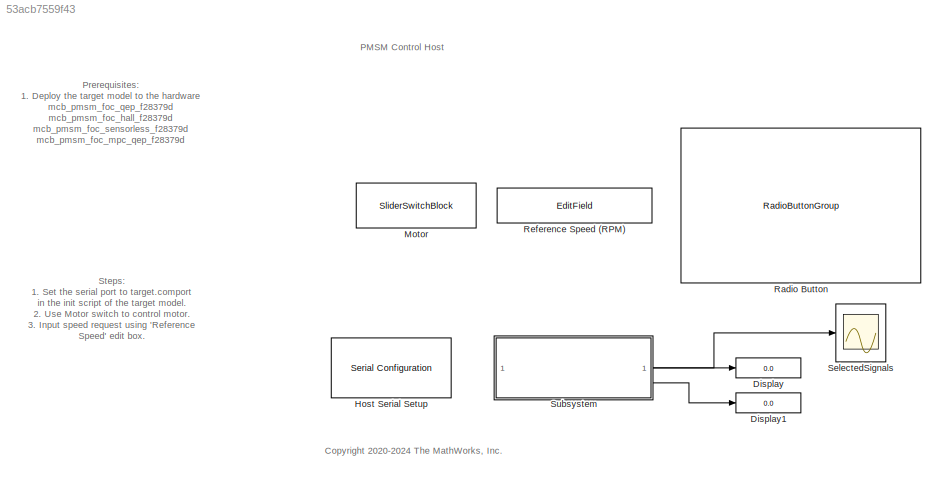
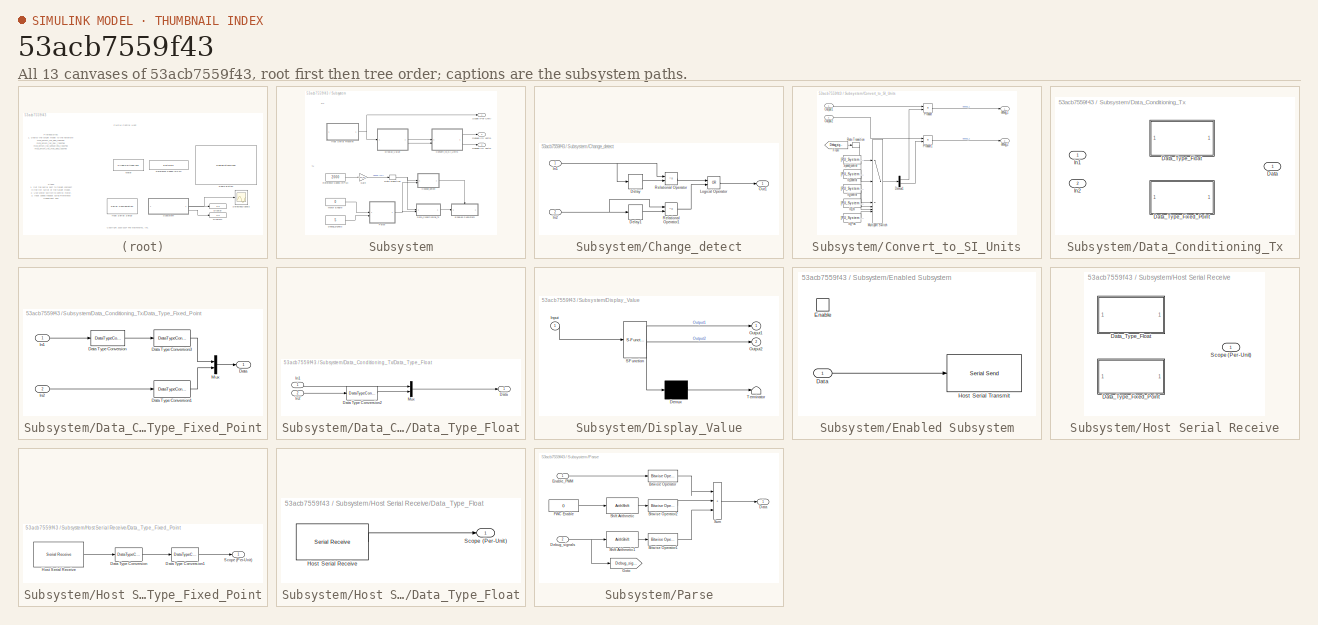
[diagram: thumbnail index - all 13 canvases of the model, root first then tree order]
MODEL slx_53acb7559f43
KIND model
CONFIG AbsTol = auto
CONFIG EnableMultiTasking = on
CONFIG FixedStep = auto
CONFIG MaxStep = auto
CONFIG MinStep = auto
CONFIG RelTol = 1e-3
CONFIG SampleTimeConstraint = Unconstrained
CONFIG SolverName = VariableStepAuto
CONFIG StartTime = 0.0
CONFIG StopTime = Inf
BLOCK [Display] Display
  Decimation = 1
BLOCK [Display] Display1
  Decimation = 1
BLOCK [Reference] Host Serial Setup  REF=instrumentseriallib/Serial Configuration
  LibrarySourceBlock = mcblib/Protection and Diagnostics/Host Serial Setup
  Priority = -99
  SourceBlock = instrumentseriallib/Serial Configuration
  SourceType = system.SerialConfiguration
BLOCK [SliderSwitchBlock] Motor
  LabelPosition = Hide
BLOCK [RadioButtonGroup] Radio Button
  ButtonGroupName = Debug signals
  LabelPosition = Hide
  SelectedLabel = Ia & Position
BLOCK [EditField] Reference Speed (RPM)
  Alignment = Center
  LabelPosition = Hide
  ShowInitialText = on
BLOCK [Scope] SelectedSignals
  ActiveDisplayYMaximum = 1.1
  ActiveDisplayYMinimum = -1.1
  DataLogging = on
  DataLoggingSaveFormat = Structure With Time
  DataLoggingVariableName = Results_HW
  Floating = off
  FrameBasedProcessingString = Columns as channels (frame based)
  GraphicalSettings = {"Style":{"BackgroundColor":[0.12941176470588237,0.12941176470588237,0.12941176470588237],"AxesColor":[0.07058823529411765,0.07058823529411765,0.07058823529411765],"LabelsColor":[0.8509803921568627,0.8509803921568627,0.8509803921568627],"PreserveColors":false,"Visible":[true,true],"LineStyle":["-","-"],"LineWidth":[1.5,1.5],"BarWidth":[0.9,0.9],"LineColor":["auto","auto"],"LineFaceAlpha":[1,1],"Li...<+2044ch>
  MultipleDisplayCache = [{"MaxYLimMag":1,"MaxYLimReal":1.1,"MinYLimMag":0,"MinYLimReal":-1.1,"PlotAsMagnitudePhase":false,"ShowGrid":true,"ShowLegend":false,"Title":"%<SignalLabel>","YLabel":""}]
  NumInputPorts = 1
  OpenAtSimulationStart = on
  ScopeFrameLocation = window
  TimeSpan = 0.1
  WasSavedAsWebScope = on
  WindowPosition = [823.000000,74.000000,485.000000,765.000000,]
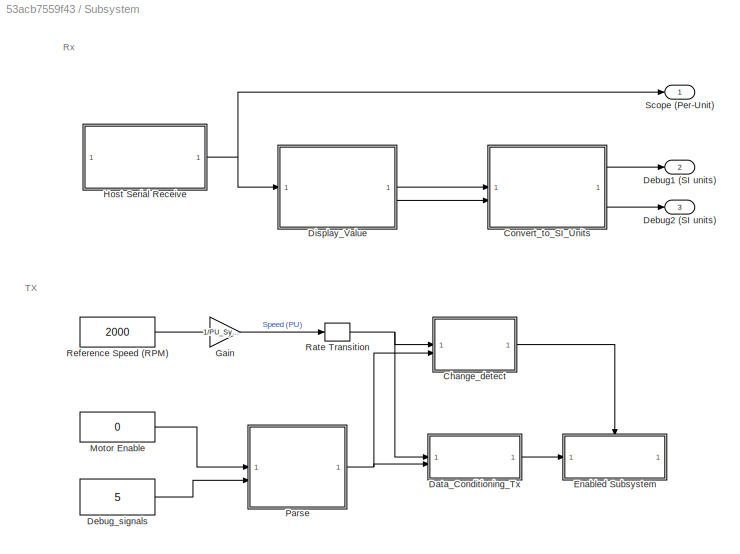
BLOCK [SubSystem] Subsystem
BLOCK [SubSystem] Subsystem/Change_detect
BLOCK [Delay] Subsystem/Change_detect/Delay
  DelayLength = 1
  InputPortMap = u0
  InputProcessing = Columns as channels (frame based)
BLOCK [Delay] Subsystem/Change_detect/Delay1
  DelayLength = 1
  InputPortMap = u0
  InputProcessing = Columns as channels (frame based)
BLOCK [Inport] Subsystem/Change_detect/In1
BLOCK [Inport] Subsystem/Change_detect/In2
  Port = 2
BLOCK [Logic] Subsystem/Change_detect/Logical Operator
  AllPortsSameDT = off
  Operator = OR
  OutDataTypeStr = boolean
BLOCK [Outport] Subsystem/Change_detect/Out1
  VectorParamsAs1DForOutWhenUnconnected = off
BLOCK [RelationalOperator] Subsystem/Change_detect/Relational Operator
  InputSameDT = off
  Operator = ~=
  OutDataTypeStr = boolean
BLOCK [RelationalOperator] Subsystem/Change_detect/Relational Operator1
  InputSameDT = off
  Operator = ~=
  OutDataTypeStr = boolean
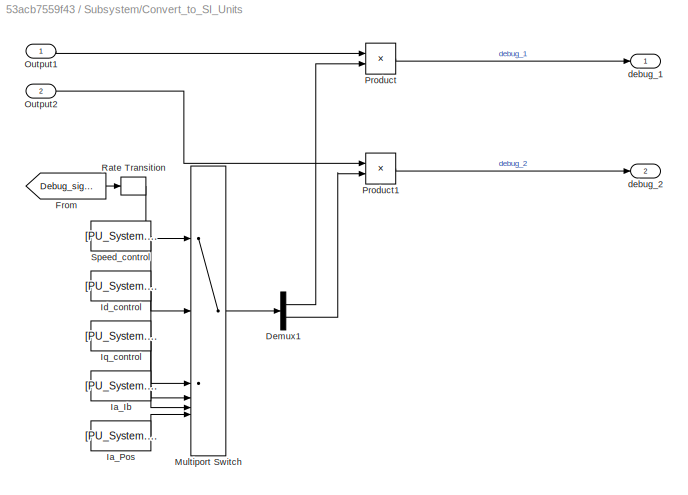
BLOCK [SubSystem] Subsystem/Convert_to_SI_Units
BLOCK [Demux] Subsystem/Convert_to_SI_Units/Demux1
  Outputs = 2
BLOCK [From] Subsystem/Convert_to_SI_Units/From
  GotoTag = Debug_signals
  TagVisibility = global
BLOCK [Constant] Subsystem/Convert_to_SI_Units/Ia_Ib
  OutDataTypeStr = single
  SampleTime = -1
  Value = [PU_System.I_base PU_System.I_base]
BLOCK [Constant] Subsystem/Convert_to_SI_Units/Ia_Pos
  OutDataTypeStr = single
  SampleTime = -1
  Value = [PU_System.I_base 2*pi]
BLOCK [Constant] Subsystem/Convert_to_SI_Units/Id_control
  OutDataTypeStr = single
  SampleTime = -1
  Value = [PU_System.I_base PU_System.I_base]
BLOCK [Constant] Subsystem/Convert_to_SI_Units/Iq_control
  OutDataTypeStr = single
  SampleTime = -1
  Value = [PU_System.I_base PU_System.I_base]
BLOCK [MultiPortSwitch] Subsystem/Convert_to_SI_Units/Multiport Switch
  DiagnosticForDefault = Warning
  InputSameDT = off
  Inputs = 5
  OutDataTypeStr = single
  RndMeth = Simplest
  SaturateOnIntegerOverflow = off
BLOCK [Inport] Subsystem/Convert_to_SI_Units/Output1
BLOCK [Inport] Subsystem/Convert_to_SI_Units/Output2
  Port = 2
BLOCK [Product] Subsystem/Convert_to_SI_Units/Product
BLOCK [Product] Subsystem/Convert_to_SI_Units/Product1
BLOCK [RateTransition] Subsystem/Convert_to_SI_Units/Rate Transition
  Deterministic = off
BLOCK [Constant] Subsystem/Convert_to_SI_Units/Speed_control
  OutDataTypeStr = single
  SampleTime = -1
  Value = [PU_System.N_base PU_System.N_base]
BLOCK [Outport] Subsystem/Convert_to_SI_Units/debug_1
BLOCK [Outport] Subsystem/Convert_to_SI_Units/debug_2
  Port = 2
BLOCK [SubSystem] Subsystem/Data_Conditioning_Tx
  Variant = on
BLOCK [Outport] Subsystem/Data_Conditioning_Tx/Data
BLOCK [SubSystem] Subsystem/Data_Conditioning_Tx/Data_Type_Fixed_Point
  VariantControl = ~isequal(dataType, 'single')
BLOCK [Outport] Subsystem/Data_Conditioning_Tx/Data_Type_Fixed_Point/Data
BLOCK [DataTypeConversion] Subsystem/Data_Conditioning_Tx/Data_Type_Fixed_Point/Data Type Conversion
  OutDataTypeStr = fixdt(1,32,28)
  RndMeth = Simplest
  SaturateOnIntegerOverflow = off
BLOCK [DataTypeConversion] Subsystem/Data_Conditioning_Tx/Data_Type_Fixed_Point/Data Type Conversion1
  OutDataTypeStr = uint32
  RndMeth = Simplest
  SaturateOnIntegerOverflow = off
BLOCK [DataTypeConversion] Subsystem/Data_Conditioning_Tx/Data_Type_Fixed_Point/Data Type Conversion3
  ConvertRealWorld = Stored Integer (SI)
  OutDataTypeStr = uint32
  RndMeth = Simplest
  SaturateOnIntegerOverflow = off
BLOCK [Inport] Subsystem/Data_Conditioning_Tx/Data_Type_Fixed_Point/In1
BLOCK [Inport] Subsystem/Data_Conditioning_Tx/Data_Type_Fixed_Point/In2
  Port = 2
BLOCK [Mux] Subsystem/Data_Conditioning_Tx/Data_Type_Fixed_Point/Mux
  DisplayOption = bar
  Inputs = 2
BLOCK [SubSystem] Subsystem/Data_Conditioning_Tx/Data_Type_Float
  VariantControl = isequal(dataType, 'single')
BLOCK [Outport] Subsystem/Data_Conditioning_Tx/Data_Type_Float/Data
BLOCK [DataTypeConversion] Subsystem/Data_Conditioning_Tx/Data_Type_Float/Data Type Conversion2
  OutDataTypeStr = single
  RndMeth = Simplest
  SaturateOnIntegerOverflow = off
BLOCK [Inport] Subsystem/Data_Conditioning_Tx/Data_Type_Float/In1
BLOCK [Inport] Subsystem/Data_Conditioning_Tx/Data_Type_Float/In2
  Port = 2
BLOCK [Mux] Subsystem/Data_Conditioning_Tx/Data_Type_Float/Mux
  DisplayOption = bar
  Inputs = 2
BLOCK [Inport] Subsystem/Data_Conditioning_Tx/In1
BLOCK [Inport] Subsystem/Data_Conditioning_Tx/In2
  Port = 2
BLOCK [Outport] Subsystem/Debug1 (SI units)
  Port = 2
BLOCK [Outport] Subsystem/Debug2 (SI units)
  Port = 3
BLOCK [Constant] Subsystem/Debug_signals
  OutDataTypeStr = uint16
  SampleTime = 0.03
  Value = 5
BLOCK [SubSystem] Subsystem/Display_Value
  ErrorFcn = Stateflow.Translate.translate
  PermitHierarchicalResolution = ExplicitOnly
  SFBlockType = MATLAB Function
  TreatAsAtomicUnit = on
BLOCK [Demux] Subsystem/Display_Value/ Demux 
  Outputs = 1
BLOCK [S-Function] Subsystem/Display_Value/ SFunction 
  EnableBusSupport = off
  FunctionName = sf_sfun
  PortCounts = [1 3]
  SFcnIsStateOwnerBlock = off
  SFunctionDeploymentMode = off
  Tag = Stateflow S-Function 3
BLOCK [Terminator] Subsystem/Display_Value/ Terminator 
BLOCK [Inport] Subsystem/Display_Value/Input
BLOCK [Outport] Subsystem/Display_Value/Output1
BLOCK [Outport] Subsystem/Display_Value/Output2
  Port = 2
BLOCK [SubSystem] Subsystem/Enabled Subsystem
  TreatAsAtomicUnit = on
BLOCK [Inport] Subsystem/Enabled Subsystem/Data
BLOCK [EnablePort] Subsystem/Enabled Subsystem/Enable
BLOCK [Reference] Subsystem/Enabled Subsystem/Host Serial Transmit  REF=instrumentseriallib/Serial Send
  LibrarySourceBlock = mcblib/Protection and Diagnostics/Host Serial Transmit
  SourceBlock = instrumentseriallib/Serial Send
  SourceType = system.SerialSend
BLOCK [Gain] Subsystem/Gain
  Gain = 1/PU_System.N_base
  OutDataTypeStr = Inherit: Same as input
  RndMeth = Simplest
BLOCK [SubSystem] Subsystem/Host Serial Receive
  Variant = on
BLOCK [SubSystem] Subsystem/Host Serial Receive/Data_Type_Fixed_Point
  VariantControl = ~isequal(dataType, 'single')
BLOCK [DataTypeConversion] Subsystem/Host Serial Receive/Data_Type_Fixed_Point/Data Type Conversion
  ConvertRealWorld = Stored Integer (SI)
  OutDataTypeStr = fixdt(1,32,28)
  RndMeth = Simplest
  SaturateOnIntegerOverflow = off
BLOCK [DataTypeConversion] Subsystem/Host Serial Receive/Data_Type_Fixed_Point/Data Type Conversion1
  OutDataTypeStr = single
  RndMeth = Simplest
  SaturateOnIntegerOverflow = off
BLOCK [Reference] Subsystem/Host Serial Receive/Data_Type_Fixed_Point/Host Serial Receive  REF=instrumentseriallib/Serial Receive
  LibrarySourceBlock = mcblib/Protection and Diagnostics/Host Serial Receive
  SourceBlock = instrumentseriallib/Serial Receive
  SourceType = system.SerialReceive
BLOCK [Outport] Subsystem/Host Serial Receive/Data_Type_Fixed_Point/Scope (Per-Unit)
BLOCK [SubSystem] Subsystem/Host Serial Receive/Data_Type_Float
  VariantControl = isequal(dataType, 'single')
BLOCK [Reference] Subsystem/Host Serial Receive/Data_Type_Float/Host Serial Receive  REF=instrumentseriallib/Serial Receive
  LibrarySourceBlock = mcblib/Protection and Diagnostics/Host Serial Receive
  SourceBlock = instrumentseriallib/Serial Receive
  SourceType = system.SerialReceive
BLOCK [Outport] Subsystem/Host Serial Receive/Data_Type_Float/Scope (Per-Unit)
BLOCK [Outport] Subsystem/Host Serial Receive/Scope (Per-Unit)
BLOCK [Constant] Subsystem/Motor Enable
  OutDataTypeStr = uint16
  SampleTime = 0.03
  Value = 0
  VectorParams1D = off
BLOCK [SubSystem] Subsystem/Parse
BLOCK [Reference] Subsystem/Parse/Bitwise Operator  REF=simulink/Logic and Bit
Operations/Bitwise
Operator
  SourceBlock = simulink/Logic and Bit\nOperations/Bitwise\nOperator
  SourceType = Bitwise Operator
BLOCK [Reference] Subsystem/Parse/Bitwise Operator1  REF=simulink/Logic and Bit
Operations/Bitwise
Operator
  SourceBlock = simulink/Logic and Bit\nOperations/Bitwise\nOperator
  SourceType = Bitwise Operator
BLOCK [Reference] Subsystem/Parse/Bitwise Operator2  REF=simulink/Logic and Bit
Operations/Bitwise
Operator
  SourceBlock = simulink/Logic and Bit\nOperations/Bitwise\nOperator
  SourceType = Bitwise Operator
BLOCK [Outport] Subsystem/Parse/Data
BLOCK [Inport] Subsystem/Parse/Debug_signals
  Port = 2
BLOCK [Inport] Subsystem/Parse/Enable_PWM
BLOCK [Constant] Subsystem/Parse/FWC Enable
  OutDataTypeStr = uint16
  SampleTime = 0.03
  Value = 0
  VectorParams1D = off
BLOCK [Goto] Subsystem/Parse/Goto
  GotoTag = Debug_signals
  TagVisibility = global
BLOCK [ArithShift] Subsystem/Parse/Shift Arithmetic
  BitShiftNumber = -1
  InputPortMap = u0
BLOCK [ArithShift] Subsystem/Parse/Shift Arithmetic1
  BitShiftNumber = -4
  InputPortMap = u0
BLOCK [Sum] Subsystem/Parse/Sum
  IconShape = rectangular
  Inputs = |+++
BLOCK [RateTransition] Subsystem/Rate Transition
  OutPortSampleTime = 0.03
BLOCK [Constant] Subsystem/Reference Speed (RPM)
  OutDataTypeStr = single
  SampleTime = 0.03
  Value = 2000
  VectorParams1D = off
BLOCK [Outport] Subsystem/Scope (Per-Unit)
ANNOTATION (root): PMSM Control Host
ANNOTATION (root): <copyright redacted>
ANNOTATION (root): Prerequisites: 1. Deploy the target model to the hardware mcb_pmsm_foc_qep_f28379d mcb_pmsm_foc_hall_f28379d mcb_pmsm_foc_sensorless_f28379d mcb_pmsm_foc_mpc_qep_f28379d 2.The variables from the target model are loaded to the base workspace.
ANNOTATION (root): Steps: 1. Set the serial port to target.comport in the init script of the target model. 2. Use Motor switch to control motor. 3. Input speed request using 'Reference Speed' edit box. 4. Observe the debug signals in scope. 5. Start the motor in open loop under no load condition and transition to close loop for Sensorless Example.
ANNOTATION Subsystem: Rx
ANNOTATION Subsystem: TX
LINE Subsystem/Change_detect/Delay1:1 -> Subsystem/Change_detect/Relational Operator1:2
LINE Subsystem/Change_detect/Delay:1 -> Subsystem/Change_detect/Relational Operator:2
NET Subsystem/Change_detect/In1:1 -> Subsystem/Change_detect/Delay:1, Subsystem/Change_detect/Relational Operator:1
NET Subsystem/Change_detect/In2:1 -> Subsystem/Change_detect/Delay1:1, Subsystem/Change_detect/Relational Operator1:1
LINE Subsystem/Change_detect/Logical Operator:1 -> Subsystem/Change_detect/Out1:1
LINE Subsystem/Change_detect/Relational Operator1:1 -> Subsystem/Change_detect/Logical Operator:2
LINE Subsystem/Change_detect/Relational Operator:1 -> Subsystem/Change_detect/Logical Operator:1
LINE Subsystem/Change_detect:1 -> Subsystem/Enabled Subsystem:enable
LINE Subsystem/Convert_to_SI_Units/Demux1:1 -> Subsystem/Convert_to_SI_Units/Product:2
LINE Subsystem/Convert_to_SI_Units/Demux1:2 -> Subsystem/Convert_to_SI_Units/Product1:2
LINE Subsystem/Convert_to_SI_Units/From:1 -> Subsystem/Convert_to_SI_Units/Rate Transition:1
LINE Subsystem/Convert_to_SI_Units/Ia_Ib:1 -> Subsystem/Convert_to_SI_Units/Multiport Switch:5
LINE Subsystem/Convert_to_SI_Units/Ia_Pos:1 -> Subsystem/Convert_to_SI_Units/Multiport Switch:6
LINE Subsystem/Convert_to_SI_Units/Id_control:1 -> Subsystem/Convert_to_SI_Units/Multiport Switch:3
LINE Subsystem/Convert_to_SI_Units/Iq_control:1 -> Subsystem/Convert_to_SI_Units/Multiport Switch:4
LINE Subsystem/Convert_to_SI_Units/Multiport Switch:1 -> Subsystem/Convert_to_SI_Units/Demux1:1
LINE Subsystem/Convert_to_SI_Units/Output1:1 -> Subsystem/Convert_to_SI_Units/Product:1
LINE Subsystem/Convert_to_SI_Units/Output2:1 -> Subsystem/Convert_to_SI_Units/Product1:1
LINE Subsystem/Convert_to_SI_Units/Product1:1 -> Subsystem/Convert_to_SI_Units/debug_2:1
LINE Subsystem/Convert_to_SI_Units/Product:1 -> Subsystem/Convert_to_SI_Units/debug_1:1
LINE Subsystem/Convert_to_SI_Units/Rate Transition:1 -> Subsystem/Convert_to_SI_Units/Multiport Switch:1
LINE Subsystem/Convert_to_SI_Units/Speed_control:1 -> Subsystem/Convert_to_SI_Units/Multiport Switch:2
LINE Subsystem/Convert_to_SI_Units:1 -> Subsystem/Debug1 (SI units):1
LINE Subsystem/Convert_to_SI_Units:2 -> Subsystem/Debug2 (SI units):1
LINE Subsystem/Data_Conditioning_Tx/Data_Type_Fixed_Point/Data Type Conversion1:1 -> Subsystem/Data_Conditioning_Tx/Data_Type_Fixed_Point/Mux:2
LINE Subsystem/Data_Conditioning_Tx/Data_Type_Fixed_Point/Data Type Conversion3:1 -> Subsystem/Data_Conditioning_Tx/Data_Type_Fixed_Point/Mux:1
LINE Subsystem/Data_Conditioning_Tx/Data_Type_Fixed_Point/Data Type Conversion:1 -> Subsystem/Data_Conditioning_Tx/Data_Type_Fixed_Point/Data Type Conversion3:1
LINE Subsystem/Data_Conditioning_Tx/Data_Type_Fixed_Point/In1:1 -> Subsystem/Data_Conditioning_Tx/Data_Type_Fixed_Point/Data Type Conversion:1
LINE Subsystem/Data_Conditioning_Tx/Data_Type_Fixed_Point/In2:1 -> Subsystem/Data_Conditioning_Tx/Data_Type_Fixed_Point/Data Type Conversion1:1
LINE Subsystem/Data_Conditioning_Tx/Data_Type_Fixed_Point/Mux:1 -> Subsystem/Data_Conditioning_Tx/Data_Type_Fixed_Point/Data:1
LINE Subsystem/Data_Conditioning_Tx/Data_Type_Float/Data Type Conversion2:1 -> Subsystem/Data_Conditioning_Tx/Data_Type_Float/Mux:2
LINE Subsystem/Data_Conditioning_Tx/Data_Type_Float/In1:1 -> Subsystem/Data_Conditioning_Tx/Data_Type_Float/Mux:1
LINE Subsystem/Data_Conditioning_Tx/Data_Type_Float/In2:1 -> Subsystem/Data_Conditioning_Tx/Data_Type_Float/Data Type Conversion2:1
LINE Subsystem/Data_Conditioning_Tx/Data_Type_Float/Mux:1 -> Subsystem/Data_Conditioning_Tx/Data_Type_Float/Data:1
LINE Subsystem/Data_Conditioning_Tx:1 -> Subsystem/Enabled Subsystem:1
LINE Subsystem/Debug_signals:1 -> Subsystem/Parse:2
LINE Subsystem/Display_Value:1 -> Subsystem/Convert_to_SI_Units:1
LINE Subsystem/Display_Value:2 -> Subsystem/Convert_to_SI_Units:2
LINE Subsystem/Enabled Subsystem/Data:1 -> Subsystem/Enabled Subsystem/Host Serial Transmit:1
LINE Subsystem/Gain:1 -> Subsystem/Rate Transition:1
LINE Subsystem/Host Serial Receive/Data_Type_Fixed_Point/Data Type Conversion1:1 -> Subsystem/Host Serial Receive/Data_Type_Fixed_Point/Scope (Per-Unit):1
LINE Subsystem/Host Serial Receive/Data_Type_Fixed_Point/Data Type Conversion:1 -> Subsystem/Host Serial Receive/Data_Type_Fixed_Point/Data Type Conversion1:1
LINE Subsystem/Host Serial Receive/Data_Type_Fixed_Point/Host Serial Receive:1 -> Subsystem/Host Serial Receive/Data_Type_Fixed_Point/Data Type Conversion:1
LINE Subsystem/Host Serial Receive/Data_Type_Float/Host Serial Receive:1 -> Subsystem/Host Serial Receive/Data_Type_Float/Scope (Per-Unit):1
NET Subsystem/Host Serial Receive:1 -> Subsystem/Display_Value:1, Subsystem/Scope (Per-Unit):1
LINE Subsystem/Motor Enable:1 -> Subsystem/Parse:1
LINE Subsystem/Parse/Bitwise Operator1:1 -> Subsystem/Parse/Sum:3
LINE Subsystem/Parse/Bitwise Operator2:1 -> Subsystem/Parse/Sum:2
LINE Subsystem/Parse/Bitwise Operator:1 -> Subsystem/Parse/Sum:1
NET Subsystem/Parse/Debug_signals:1 -> Subsystem/Parse/Goto:1, Subsystem/Parse/Shift Arithmetic1:1
LINE Subsystem/Parse/Enable_PWM:1 -> Subsystem/Parse/Bitwise Operator:1
LINE Subsystem/Parse/FWC Enable:1 -> Subsystem/Parse/Shift Arithmetic:1
LINE Subsystem/Parse/Shift Arithmetic1:1 -> Subsystem/Parse/Bitwise Operator1:1
LINE Subsystem/Parse/Shift Arithmetic:1 -> Subsystem/Parse/Bitwise Operator2:1
LINE Subsystem/Parse/Sum:1 -> Subsystem/Parse/Data:1
NET Subsystem/Parse:1 -> Subsystem/Change_detect:2, Subsystem/Data_Conditioning_Tx:2
NET Subsystem/Rate Transition:1 -> Subsystem/Change_detect:1, Subsystem/Data_Conditioning_Tx:1
LINE Subsystem/Reference Speed (RPM):1 -> Subsystem/Gain:1
LINE Subsystem:1 -> SelectedSignals:1
LINE Subsystem:2 -> Display:1
LINE Subsystem:3 -> Display1:1
note: NET lines group one-source signal fan-out (src -> all destinations, sorted); 1:1 wires keep LINE
CHART Subsystem/Display_Value states=1 transitions=1
  STATE_LABEL 'eML_blk_kernel()'
  STATE_LABEL 'SCRIPT:\nfunction [ Output1, Output2] = unBuf(Input)\n% Unbuffer function\n% Outputs first received serial data from buffer for both signals\n\n% <copyright redacted>\n\nselSignal= Input(:, 1);\nOutput1 = selSignal(1,1);\nselSignal = Input(:, 2);\nOutput2 = selSignal(1,1);\nend'
CHART  states=0 transitions=0
